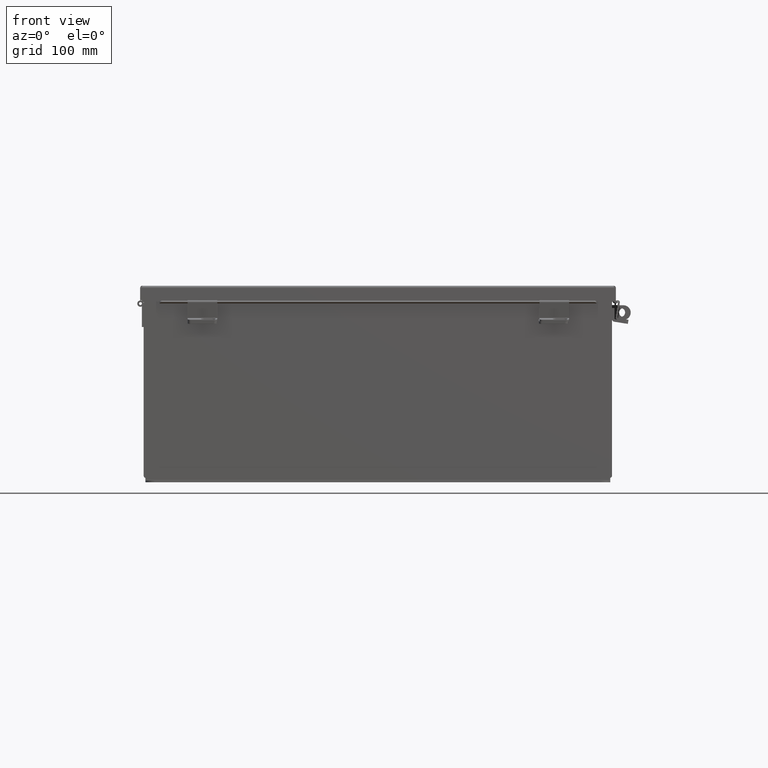
[diagram: clean part render]
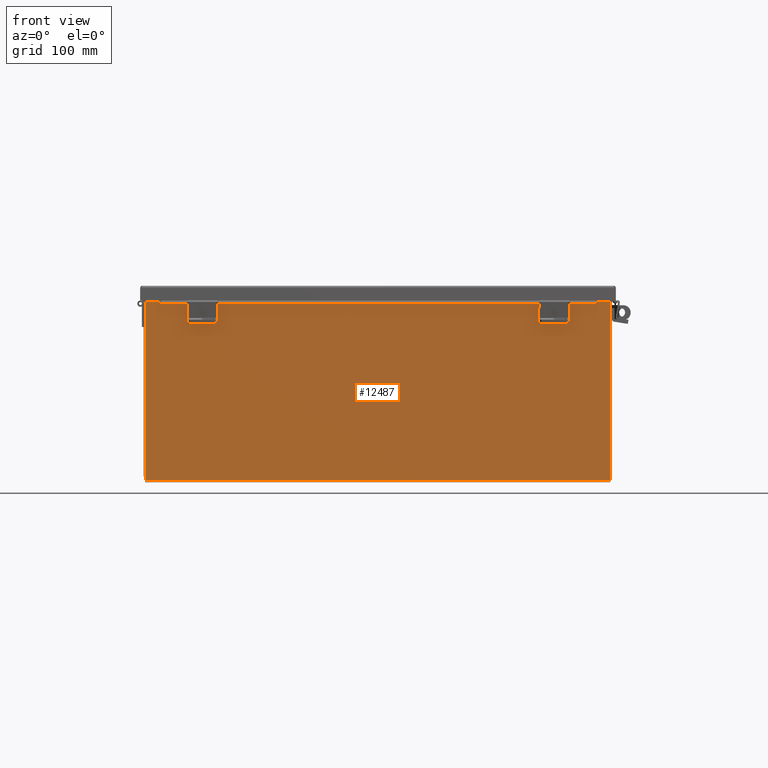
[diagram: same view with one face highlighted and labeled with its STEP entity id]
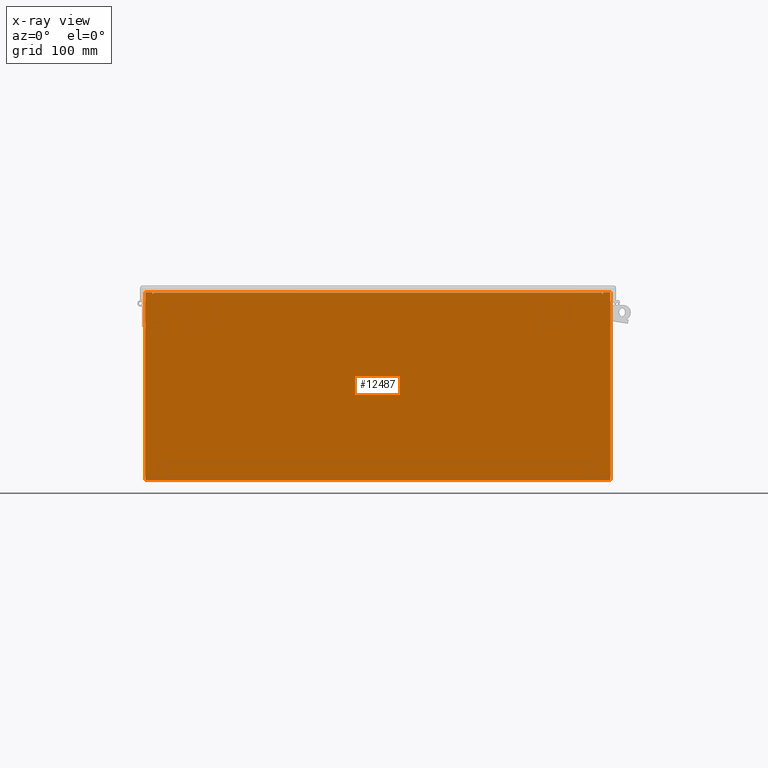
[diagram: x-ray of the same camera — body ghosted, the highlighted face saturated]
A machine part, front view. The second image highlights one B-rep face of the part: STEP entity #12487.
The next image is the same camera in x-ray: the body ghosted, the highlighted face saturated — about 0% of this face is hidden behind the body in this view.
In plain terms, the highlighted planar face has unit normal (-0, 1, -0).
Its self-contained STEP definition (entity closure, byte-faithful):
#83 = DIRECTION ( 'NONE',  ( 1.000000000000000000, 4.910036603141682400E-031, 0.0000000000000000000 ) ) ;
#224 = VERTEX_POINT ( 'NONE', #22451 ) ;
#381 = DIRECTION ( 'NONE',  ( -4.910036603141682400E-031, -1.000000000000000000, -0.0000000000000000000 ) ) ;
#620 = VECTOR ( 'NONE', #13363, 39.37007874015748100 ) ;
#973 = ORIENTED_EDGE ( 'NONE', *, *, #12083, .F. ) ;
#1158 = CIRCLE ( 'NONE', #16403, 0.01867500000000003900 ) ;
#1232 = VECTOR ( 'NONE', #16738, 39.37007874015748100 ) ;
#1719 = LINE ( 'NONE', #17200, #14924 ) ;
#1799 = EDGE_CURVE ( 'NONE', #18958, #224, #1719, .T. ) ;
#1817 = ORIENTED_EDGE ( 'NONE', *, *, #18952, .T. ) ;
#2048 = CARTESIAN_POINT ( 'NONE',  ( 9.925300000000000000, 0.0000000000000000000, 3.925300000000000900 ) ) ;
#2082 = CARTESIAN_POINT ( 'NONE',  ( -9.925299999999996500, -2.185478394931410600E-015, -4.099300000000003900 ) ) ;
#2329 = EDGE_CURVE ( 'NONE', #8047, #2878, #1158, .T. ) ;
#2471 = LINE ( 'NONE', #12112, #10485 ) ;
#2592 = EDGE_CURVE ( 'NONE', #18836, #224, #4366, .T. ) ;
#2878 = VERTEX_POINT ( 'NONE', #17629 ) ;
#3241 = CARTESIAN_POINT ( 'NONE',  ( 9.925299999999998200, 1.748382715945128500E-014, -4.099299999999999500 ) ) ;
#3447 = LINE ( 'NONE', #2048, #11490 ) ;
#3660 = LINE ( 'NONE', #10683, #21540 ) ;
#3879 = VERTEX_POINT ( 'NONE', #16285 ) ;
#4083 = ORIENTED_EDGE ( 'NONE', *, *, #17070, .F. ) ;
#4366 = LINE ( 'NONE', #18094, #22248 ) ;
#4472 = LINE ( 'NONE', #6711, #13068 ) ;
#4499 = DIRECTION ( 'NONE',  ( 0.0000000000000000000, 0.0000000000000000000, -1.000000000000000000 ) ) ;
#4621 = CARTESIAN_POINT ( 'NONE',  ( -9.582299999999998300, 0.0000000000000000000, 0.0000000000000000000 ) ) ;
#4735 = EDGE_CURVE ( 'NONE', #4769, #3879, #4472, .T. ) ;
#4769 = VERTEX_POINT ( 'NONE', #18102 ) ;
#4955 = LINE ( 'NONE', #9561, #13615 ) ;
#5154 = LINE ( 'NONE', #11594, #620 ) ;
#5216 = LINE ( 'NONE', #4621, #1232 ) ;
#5551 = ORIENTED_EDGE ( 'NONE', *, *, #15538, .T. ) ;
#5599 = DIRECTION ( 'NONE',  ( 4.910036603141682400E-031, 1.000000000000000000, -0.0000000000000000000 ) ) ;
#5892 = CARTESIAN_POINT ( 'NONE',  ( 9.582300000000000000, 0.0000000000000000000, 3.874949999999998300 ) ) ;
#6711 = CARTESIAN_POINT ( 'NONE',  ( 9.619649999999833100, 0.0000000000000000000, -4.179727430306322700E-013 ) ) ;
#6864 = EDGE_CURVE ( 'NONE', #3879, #18836, #8400, .T. ) ;
#7221 = CARTESIAN_POINT ( 'NONE',  ( -9.925299999999998200, -1.748382715945128500E-014, 3.925299999999998700 ) ) ;
#8047 = VERTEX_POINT ( 'NONE', #21819 ) ;
#8086 = EDGE_CURVE ( 'NONE', #21108, #11868, #14866, .T. ) ;
#8245 = EDGE_CURVE ( 'NONE', #11868, #11787, #2471, .T. ) ;
#8400 = CIRCLE ( 'NONE', #11763, 0.01867500000000003900 ) ;
#9561 = CARTESIAN_POINT ( 'NONE',  ( -9.619649999999998300, 0.0000000000000000000, 0.0000000000000000000 ) ) ;
#9745 = AXIS2_PLACEMENT_3D ( 'NONE', #15852, #381, #12398 ) ;
#9963 = ORIENTED_EDGE ( 'NONE', *, *, #8086, .T. ) ;
#10485 = VECTOR ( 'NONE', #83, 39.37007874015748100 ) ;
#10683 = CARTESIAN_POINT ( 'NONE',  ( -9.925299999999998200, -2.185478394931410600E-015, -4.099300000000003900 ) ) ;
#10892 = ORIENTED_EDGE ( 'NONE', *, *, #2592, .F. ) ;
#10910 = VERTEX_POINT ( 'NONE', #17170 ) ;
#11194 = DIRECTION ( 'NONE',  ( 4.910036603141682400E-031, 1.000000000000000000, -0.0000000000000000000 ) ) ;
#11490 = VECTOR ( 'NONE', #12329, 39.37007874015748100 ) ;
#11594 = CARTESIAN_POINT ( 'NONE',  ( -9.925299999999998200, -1.748382715945128500E-014, 3.925299999999998700 ) ) ;
#11763 = AXIS2_PLACEMENT_3D ( 'NONE', #13418, #11194, #14557 ) ;
#11787 = VERTEX_POINT ( 'NONE', #12120 ) ;
#11868 = VERTEX_POINT ( 'NONE', #7221 ) ;
#11932 = EDGE_CURVE ( 'NONE', #21108, #18479, #3660, .T. ) ;
#12083 = EDGE_CURVE ( 'NONE', #2878, #11787, #4955, .T. ) ;
#12112 = CARTESIAN_POINT ( 'NONE',  ( -9.925299999999998200, -1.748382715945128500E-014, 3.925299999999998700 ) ) ;
#12120 = CARTESIAN_POINT ( 'NONE',  ( -9.619649999999998300, -1.748382715945128500E-014, 3.925299999999999600 ) ) ;
#12132 = ORIENTED_EDGE ( 'NONE', *, *, #2329, .F. ) ;
#12329 = DIRECTION ( 'NONE',  ( -2.783836133456566600E-016, 0.0000000000000000000, -1.000000000000000000 ) ) ;
#12398 = DIRECTION ( 'NONE',  ( 0.0000000000000000000, 0.0000000000000000000, -1.000000000000000000 ) ) ;
#12487 = ADVANCED_FACE ( 'NONE', ( #17446 ), #21116, .F. ) ;
#13068 = VECTOR ( 'NONE', #15587, 39.37007874015748100 ) ;
#13363 = DIRECTION ( 'NONE',  ( 1.000000000000000000, 4.910036603141682400E-031, 0.0000000000000000000 ) ) ;
#13418 = CARTESIAN_POINT ( 'NONE',  ( 9.600975000000000000, 0.0000000000000000000, 3.874949999999998300 ) ) ;
#13615 = VECTOR ( 'NONE', #20014, 39.37007874015748100 ) ;
#13881 = ORIENTED_EDGE ( 'NONE', *, *, #8245, .T. ) ;
#14557 = DIRECTION ( 'NONE',  ( 0.0000000000000000000, 0.0000000000000000000, -1.000000000000000000 ) ) ;
#14866 = LINE ( 'NONE', #16657, #18428 ) ;
#14924 = VECTOR ( 'NONE', #16606, 39.37007874015748100 ) ;
#15538 = EDGE_CURVE ( 'NONE', #10910, #18479, #3447, .T. ) ;
#15587 = DIRECTION ( 'NONE',  ( -4.340572780399863600E-014, 0.0000000000000000000, -1.000000000000000000 ) ) ;
#15852 = CARTESIAN_POINT ( 'NONE',  ( 0.0000000000000000000, 0.0000000000000000000, 0.0000000000000000000 ) ) ;
#15994 = ORIENTED_EDGE ( 'NONE', *, *, #6864, .F. ) ;
#16285 = CARTESIAN_POINT ( 'NONE',  ( 9.619650000000001800, 0.0000000000000000000, 3.874949999999998300 ) ) ;
#16403 = AXIS2_PLACEMENT_3D ( 'NONE', #19747, #5599, #4499 ) ;
#16606 = DIRECTION ( 'NONE',  ( 1.000000000000000000, 4.910036603141682400E-031, -0.0000000000000000000 ) ) ;
#16657 = CARTESIAN_POINT ( 'NONE',  ( -9.925299999999998200, -1.748382715945128500E-014, 3.925299999999998700 ) ) ;
#16738 = DIRECTION ( 'NONE',  ( 0.0000000000000000000, 0.0000000000000000000, -1.000000000000000000 ) ) ;
#16890 = CARTESIAN_POINT ( 'NONE',  ( -9.582299999999998300, -1.311287036958846300E-014, 3.912299999999997400 ) ) ;
#17070 = EDGE_CURVE ( 'NONE', #18958, #8047, #5216, .T. ) ;
#17084 = ORIENTED_EDGE ( 'NONE', *, *, #4735, .F. ) ;
#17170 = CARTESIAN_POINT ( 'NONE',  ( 9.925300000000000000, 0.0000000000000000000, 3.925300000000000900 ) ) ;
#17200 = CARTESIAN_POINT ( 'NONE',  ( -9.582299999999998300, -1.311287036958846300E-014, 3.912299999999997400 ) ) ;
#17446 = FACE_OUTER_BOUND ( 'NONE', #22113, .T. ) ;
#17629 = CARTESIAN_POINT ( 'NONE',  ( -9.619649999999996500, -1.748382715945128500E-014, 3.874949999999996100 ) ) ;
#18094 = CARTESIAN_POINT ( 'NONE',  ( 9.582300000000001800, 0.0000000000000000000, -4.370956789862821100E-015 ) ) ;
#18102 = CARTESIAN_POINT ( 'NONE',  ( 9.619650000000003600, 0.0000000000000000000, 3.925299999999999600 ) ) ;
#18399 = DIRECTION ( 'NONE',  ( 0.0000000000000000000, 0.0000000000000000000, 1.000000000000000000 ) ) ;
#18428 = VECTOR ( 'NONE', #18399, 39.37007874015748100 ) ;
#18479 = VERTEX_POINT ( 'NONE', #3241 ) ;
#18836 = VERTEX_POINT ( 'NONE', #5892 ) ;
#18952 = EDGE_CURVE ( 'NONE', #4769, #10910, #5154, .T. ) ;
#18958 = VERTEX_POINT ( 'NONE', #16890 ) ;
#19747 = CARTESIAN_POINT ( 'NONE',  ( -9.600974999999998300, -1.748382715945128500E-014, 3.874949999999996100 ) ) ;
#20014 = DIRECTION ( 'NONE',  ( 0.0000000000000000000, 0.0000000000000000000, 1.000000000000000000 ) ) ;
#21108 = VERTEX_POINT ( 'NONE', #2082 ) ;
#21116 = PLANE ( 'NONE',  #9745 ) ;
#21154 = ORIENTED_EDGE ( 'NONE', *, *, #11932, .F. ) ;
#21293 = DIRECTION ( 'NONE',  ( 1.000000000000000000, 8.208677865577687000E-017, -0.0000000000000000000 ) ) ;
#21540 = VECTOR ( 'NONE', #21293, 39.37007874015748100 ) ;
#21819 = CARTESIAN_POINT ( 'NONE',  ( -9.582299999999998300, -1.748382715945128500E-014, 3.874949999999998300 ) ) ;
#22075 = ORIENTED_EDGE ( 'NONE', *, *, #1799, .T. ) ;
#22113 = EDGE_LOOP ( 'NONE', ( #973, #12132, #4083, #22075, #10892, #15994, #17084, #1817, #5551, #21154, #9963, #13881 ) ) ;
#22204 = DIRECTION ( 'NONE',  ( 0.0000000000000000000, 0.0000000000000000000, 1.000000000000000000 ) ) ;
#22248 = VECTOR ( 'NONE', #22204, 39.37007874015748100 ) ;
#22451 = CARTESIAN_POINT ( 'NONE',  ( 9.582300000000001800, 0.0000000000000000000, 3.912299999999997400 ) ) ;